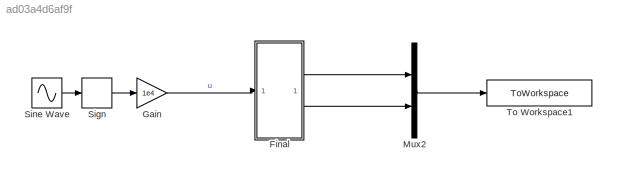
MODEL slx_ad03a4d6af9f
KIND model
CONFIG AbsTol = auto
CONFIG EnableMultiTasking = off
CONFIG FixedStep = auto
CONFIG MaxStep = auto
CONFIG MinStep = auto
CONFIG RelTol = 1e-6
CONFIG SampleTimeConstraint = Unconstrained
CONFIG SolverName = VariableStepAuto
CONFIG StartTime = 0.0
CONFIG StopTime = dur
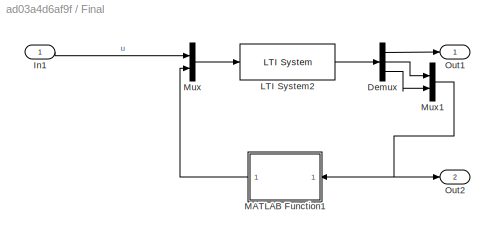
BLOCK [SubSystem] Final
BLOCK [Demux] Final/Demux
  Outputs = 3
BLOCK [Inport] Final/In1
BLOCK [Reference] Final/LTI System2  REF=cstblocks/LTI System
  SourceBlock = cstblocks/LTI System
  SourceType = LTI Block
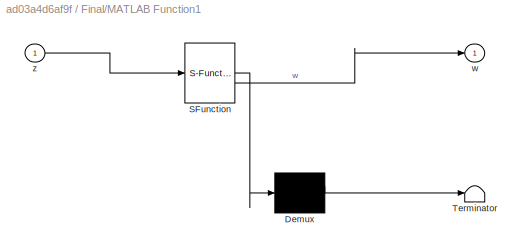
BLOCK [SubSystem] Final/MATLAB Function1
  ErrorFcn = Stateflow.Translate.translate
  LibrarySourceBlock = simulink/User-Defined\nFunctions/MATLAB Function
  PermitHierarchicalResolution = ExplicitOnly
  SFBlockType = MATLAB Function
  TreatAsAtomicUnit = on
BLOCK [Demux] Final/MATLAB Function1/ Demux 
  Outputs = 1
BLOCK [S-Function] Final/MATLAB Function1/ SFunction 
  EnableBusSupport = on
  FunctionName = sf_sfun
  PortCounts = [1 2]
  SFcnIsStateOwnerBlock = off
  SFunctionDeploymentMode = off
  Tag = Stateflow S-Function 4
BLOCK [Terminator] Final/MATLAB Function1/ Terminator 
BLOCK [Outport] Final/MATLAB Function1/w
BLOCK [Inport] Final/MATLAB Function1/z
BLOCK [Mux] Final/Mux
  DisplayOption = bar
  Inputs = 2
BLOCK [Mux] Final/Mux1
  DisplayOption = bar
  Inputs = 2
BLOCK [Outport] Final/Out1
  VectorParamsAs1DForOutWhenUnconnected = off
BLOCK [Outport] Final/Out2
  Port = 2
  VectorParamsAs1DForOutWhenUnconnected = off
BLOCK [Gain] Gain
  Gain = 1e4
BLOCK [Mux] Mux2
  DisplayOption = bar
  Inputs = 2
BLOCK [Signum] Sign
BLOCK [Sin] Sine Wave
  Frequency = 2*pi*fsim
  SampleTime = 0
BLOCK [ToWorkspace] To Workspace1
  FixptAsFi = on
  MaxDataPoints = inf
  SampleTime = -1
  SaveFormat = Timeseries
  VariableName = sim_data_full
LINE Final/Demux:1 -> Final/Out1:1
LINE Final/Demux:2 -> Final/Mux1:1
LINE Final/Demux:3 -> Final/Mux1:2
LINE Final/In1:1 -> Final/Mux:1
LINE Final/LTI System2:1 -> Final/Demux:1
LINE Final/MATLAB Function1:1 -> Final/Mux:2
NET Final/Mux1:1 -> Final/MATLAB Function1:1, Final/Out2:1
LINE Final/Mux:1 -> Final/LTI System2:1
LINE Final:1 -> Mux2:1
LINE Final:2 -> Mux2:2
LINE Gain:1 -> Final:1
LINE Mux2:1 -> To Workspace1:1
LINE Sign:1 -> Gain:1
LINE Sine Wave:1 -> Sign:1
note: NET lines group one-source signal fan-out (src -> all destinations, sorted); 1:1 wires keep LINE
CHART Final/MATLAB Function1 states=1 transitions=1
  STATE_LABEL 'eML_blk_kernel()'
  STATE_LABEL 'SCRIPT:\nfunction w = fcn(z)\n\nw = [0;0];\n\nw(1) = 2*(max(0,z(1))-z(1)/2);\nw(2) = 2*(max(0,z(2))-z(2)/2);\n'
CHART  states=0 transitions=0
